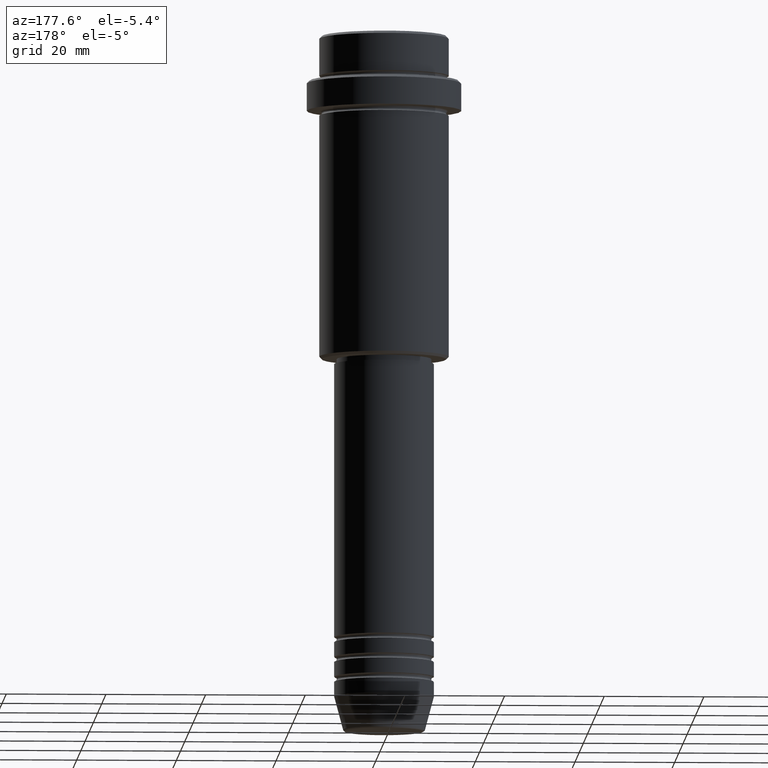
[diagram: clean part render]
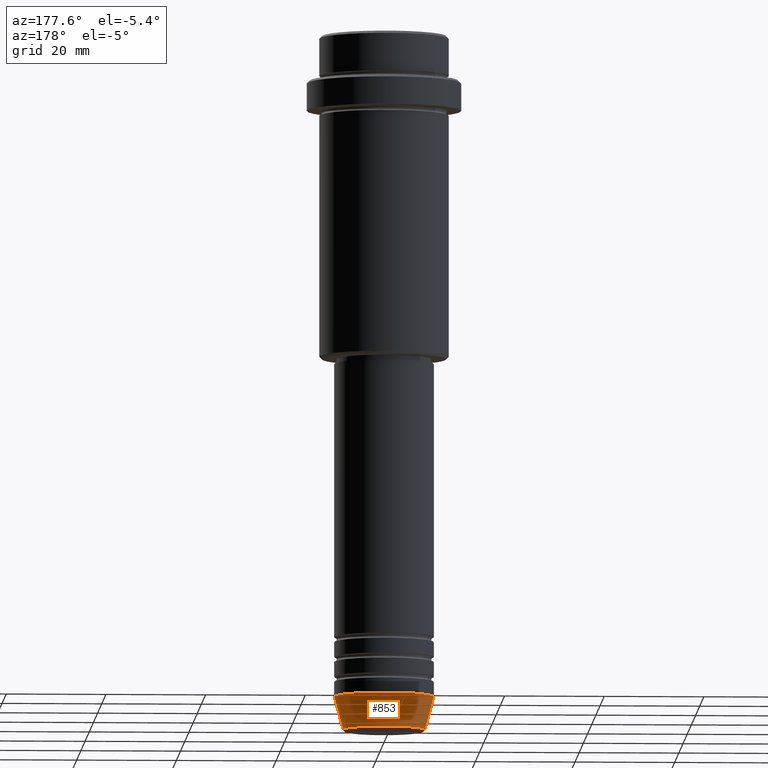
[diagram: same view with one face highlighted and labeled with its STEP entity id]
A machine part, auxiliary view. The second image highlights one B-rep face of the part: STEP entity #853.
In plain terms, the highlighted conical surface has half-angle 15 deg.
Its self-contained STEP definition (entity closure, byte-faithful):
#29 = EDGE_CURVE ( 'NONE', #1099, #723, #1296, .T. ) ;
#142 = LINE ( 'NONE', #280, #788 ) ;
#150 = AXIS2_PLACEMENT_3D ( 'NONE', #206, #1158, #413 ) ;
#154 = DIRECTION ( 'NONE',  ( -0.000000000000000000, -0.000000000000000000, 1.000000000000000000 ) ) ;
#206 = CARTESIAN_POINT ( 'NONE',  ( 0.000000000000000000, 0.000000000000000000, -133.0000000000000000 ) ) ;
#257 = EDGE_LOOP ( 'NONE', ( #812, #400, #612, #873 ) ) ;
#280 = CARTESIAN_POINT ( 'NONE',  ( -10.00000000000000000, 1.224646799147353256E-15, -133.0000000000000000 ) ) ;
#282 = EDGE_CURVE ( 'NONE', #1099, #1107, #471, .T. ) ;
#317 = EDGE_CURVE ( 'NONE', #723, #1325, #142, .T. ) ;
#325 = EDGE_CURVE ( 'NONE', #1107, #1325, #1192, .T. ) ;
#333 = DIRECTION ( 'NONE',  ( 0.2588190451025214611, 0.000000000000000000, 0.9659258262890679791 ) ) ;
#364 = FACE_OUTER_BOUND ( 'NONE', #257, .T. ) ;
#400 = ORIENTED_EDGE ( 'NONE', *, *, #317, .T. ) ;
#413 = DIRECTION ( 'NONE',  ( 1.000000000000000000, 0.000000000000000000, 0.000000000000000000 ) ) ;
#445 = DIRECTION ( 'NONE',  ( -0.000000000000000000, -0.000000000000000000, 1.000000000000000000 ) ) ;
#471 = LINE ( 'NONE', #1317, #648 ) ;
#512 = AXIS2_PLACEMENT_3D ( 'NONE', #911, #445, #573 ) ;
#573 = DIRECTION ( 'NONE',  ( 1.000000000000000000, 0.000000000000000000, 0.000000000000000000 ) ) ;
#612 = ORIENTED_EDGE ( 'NONE', *, *, #325, .F. ) ;
#648 = VECTOR ( 'NONE', #333, 1000.000000000000114 ) ;
#672 = AXIS2_PLACEMENT_3D ( 'NONE', #1350, #154, #1020 ) ;
#723 = VERTEX_POINT ( 'NONE', #1189 ) ;
#788 = VECTOR ( 'NONE', #1143, 1000.000000000000114 ) ;
#812 = ORIENTED_EDGE ( 'NONE', *, *, #29, .T. ) ;
#853 = ADVANCED_FACE ( 'NONE', ( #364 ), #946, .T. ) ;
#873 = ORIENTED_EDGE ( 'NONE', *, *, #282, .F. ) ;
#911 = CARTESIAN_POINT ( 'NONE',  ( 0.000000000000000000, 0.000000000000000000, -133.0000000000000000 ) ) ;
#946 = CONICAL_SURFACE ( 'NONE', #512, 10.00000000000000000, 0.2617993877991502405 ) ;
#960 = CARTESIAN_POINT ( 'NONE',  ( 10.00000000000000000, 0.000000000000000000, -133.0000000000000000 ) ) ;
#1020 = DIRECTION ( 'NONE',  ( 1.000000000000000000, 0.000000000000000000, 0.000000000000000000 ) ) ;
#1099 = VERTEX_POINT ( 'NONE', #1401 ) ;
#1107 = VERTEX_POINT ( 'NONE', #960 ) ;
#1143 = DIRECTION ( 'NONE',  ( -0.2588190451025214611, 3.169619151431774186E-17, 0.9659258262890679791 ) ) ;
#1158 = DIRECTION ( 'NONE',  ( -0.000000000000000000, -0.000000000000000000, 1.000000000000000000 ) ) ;
#1189 = CARTESIAN_POINT ( 'NONE',  ( -8.223655072137189492, 1.115877042642911856E-15, -139.6294095225512706 ) ) ;
#1192 = CIRCLE ( 'NONE', #150, 10.00000000000000000 ) ;
#1296 = CIRCLE ( 'NONE', #672, 8.223655072137189492 ) ;
#1317 = CARTESIAN_POINT ( 'NONE',  ( 10.00000000000000000, 0.000000000000000000, -133.0000000000000000 ) ) ;
#1325 = VERTEX_POINT ( 'NONE', #1335 ) ;
#1335 = CARTESIAN_POINT ( 'NONE',  ( -10.00000000000000000, 1.224646799147353256E-15, -133.0000000000000000 ) ) ;
#1350 = CARTESIAN_POINT ( 'NONE',  ( 0.000000000000000000, 0.000000000000000000, -139.6294095225512706 ) ) ;
#1401 = CARTESIAN_POINT ( 'NONE',  ( 8.223655072137189492, 0.000000000000000000, -139.6294095225512706 ) ) ;